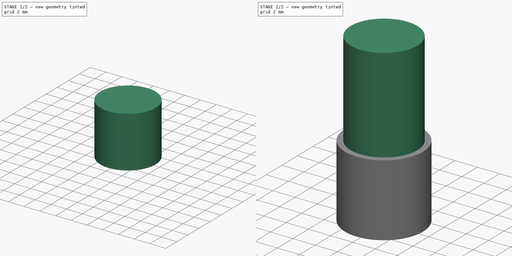
[diagram: build sequence overview — one tinted view per stage of 2, left to right]
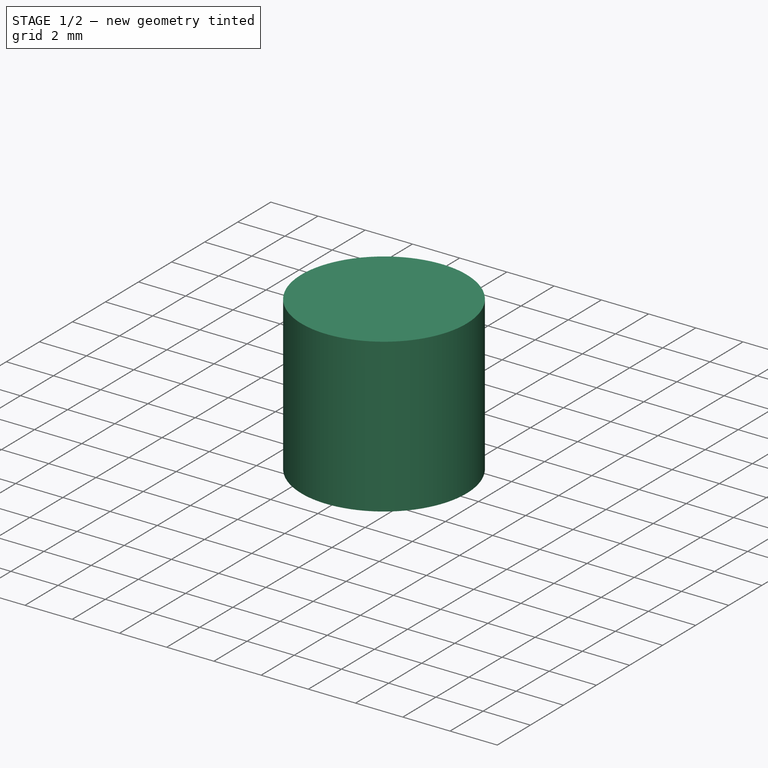
[diagram: stage 1 of 2 — iso view after this stage's code; geometry added in this stage tinted green]
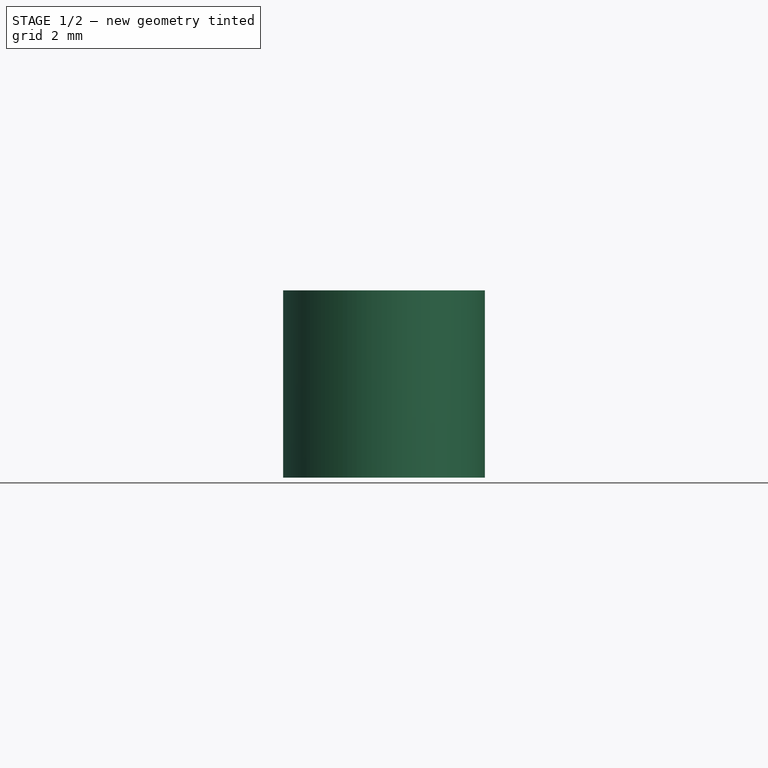
[diagram: stage 1 of 2 — front view after this stage's code; geometry added in this stage tinted green]
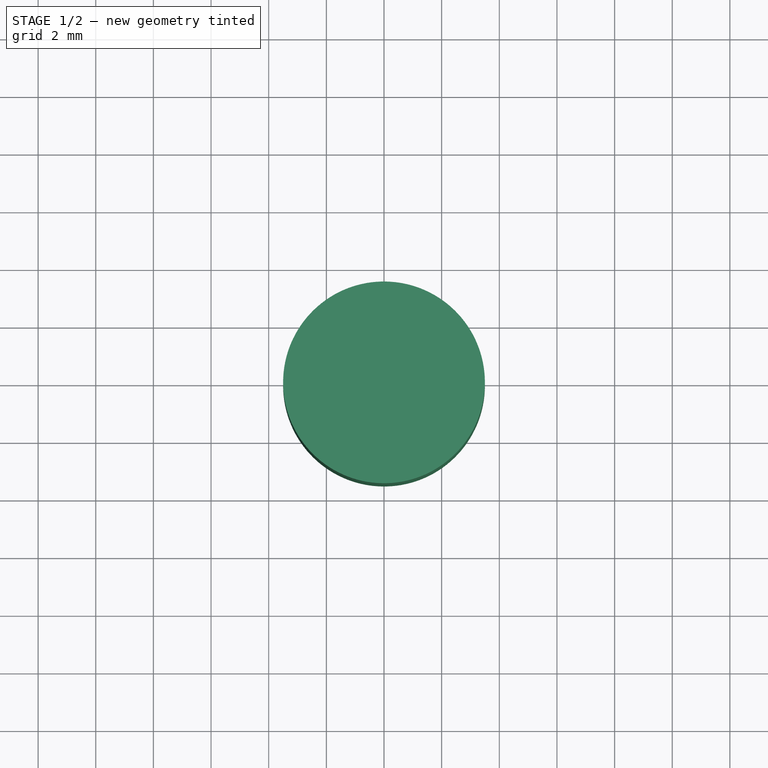
[diagram: stage 1 of 2 — top view after this stage's code; geometry added in this stage tinted green]
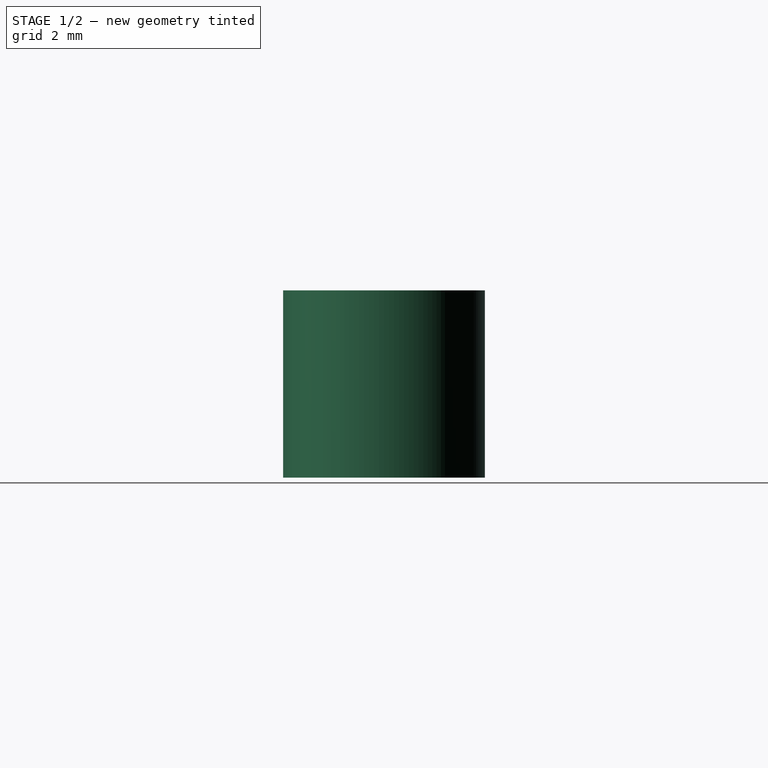
[diagram: stage 1 of 2 — right view after this stage's code; geometry added in this stage tinted green]
FCSTD DOCUMENT  (FreeCAD 0.19R16699 (Git))
Label: RV16AF Series Shafts Spreadsheet
License: All rights reserved
LicenseURL: http://en.wikipedia.org/wiki/All_rights_reserved
objects: Sketcher::SketchObject×2, PartDesign::Pad×2, Spreadsheet::Sheet×1, PartDesign::Body×1, App::Part×1
note: 7 computed .brp shape members not serialized (recipe doc carries the construction recipe); baked Part::Feature solids carry a one-line shape summary decoded from their .brp

FEATURE [Spreadsheet::Sheet] Spreadsheet  label="Data"
  cells = F1=Alpha Taiwan 16mm Series Bushing Code; A2=thread_diameter; B2(thread_diameter)==7mm; F2=Order Code Part 1; G2=Thread ; I2=Order Code Part 2; J2=Length; A3=thread_pitch; B3(thread_pitch)==0.75mm; F3=A; G3=M6 x 0.75; I3=1; J3==5mm; A4=thread_length; B4(thread_length)==6.5mm; D4=Datasheet: A; F4=B; G4=M7 x 0.75; I4=2; J4==6.5mm; A5=shaft_diameter; B5(shaft_diameter)==6mm; F5=C; G5=M8 x 0.75; I5=3; J5==7mm; A6=shaft_length; B6(shaft_length)==15mm; D6=Datasheet: L; F6=D; G6=M3/8 x 0.75; I6=4; J6==8mm; F7=Blank; G7=M7 x 0.75; I7=Blank; J7==6.5mm; F8=M3/8 equals 9.525 mm; F10=Alpha Taiwan 16mm Series Shaft Code; F11=Order Code; G11=Length; F12=10R; G12==10mm; I12=Bushing Length = 5, 6.5 or 8.0; F13=15R; G13==15mm; F14=20R; G14==20mm; I14=Addition of (1) after R appears; F15=25R; G15==25mm; I15=to indicate 6.35 mm shaft
FEATURE [Sketcher::SketchObject] Sketch  label="BushingSketch"
  MapMode = 5
  Support = -> [XY_Plane001]
  expr: Constraints[1] = Data.thread_diameter
  sketch-geometry (1):
    g0: Circle CenterX=0 CenterY=0 CenterZ=0 NormalX=0 NormalY=0 NormalZ=1 AngleXU=0 Radius=3.5
  constraints (2):
    c: Coincident(g0,g-1)
    c: Diameter(g0) = 7
FEATURE [PartDesign::Pad] Pad  label="BushingPad"
  Length = 6.5
  Length2 = 100
  Profile = -> Sketch
  Type = 0
  expr: Length = Data.thread_length
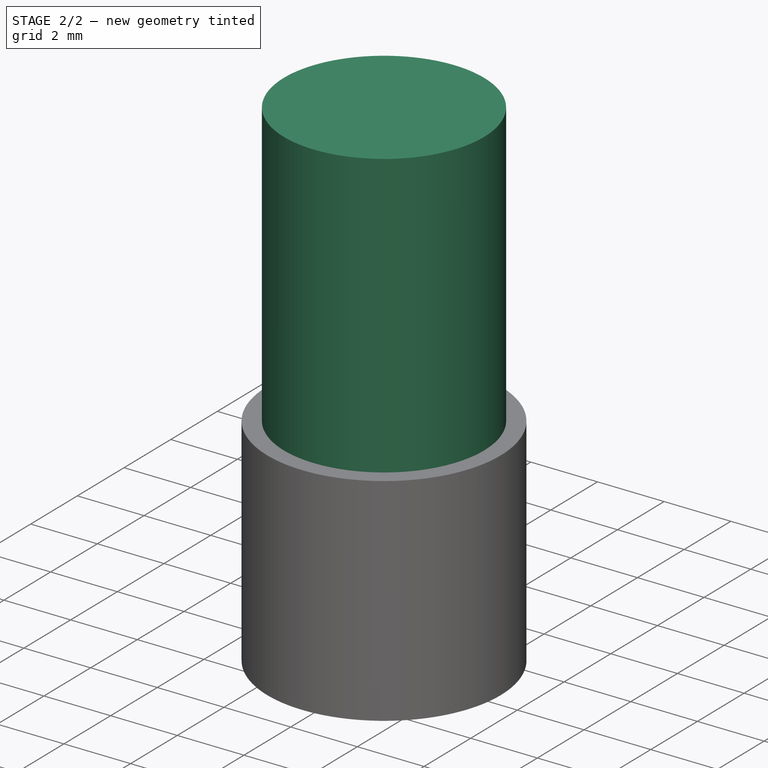
[diagram: stage 2 of 2 — iso view after this stage's code; geometry added in this stage tinted green]
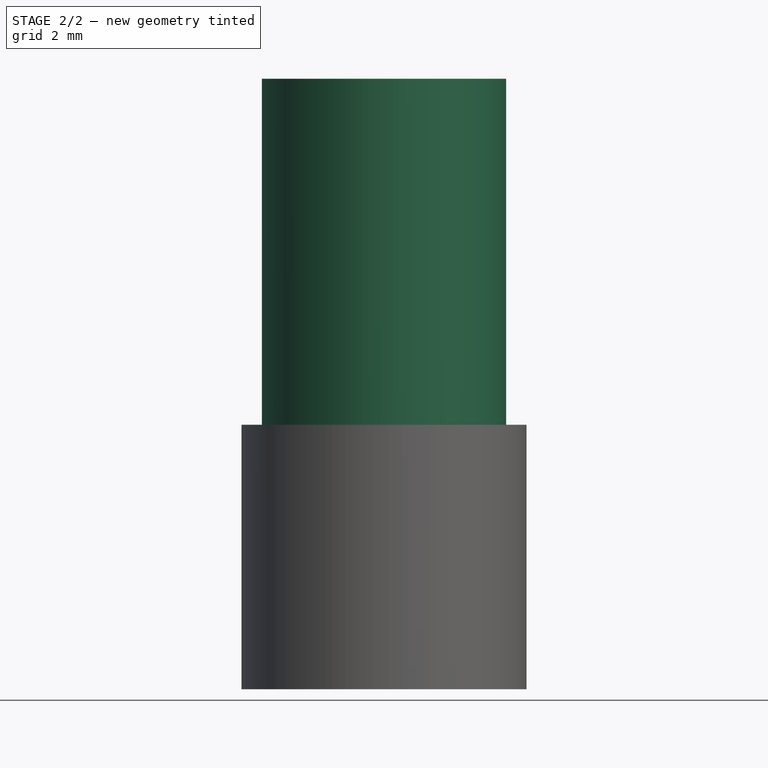
[diagram: stage 2 of 2 — front view after this stage's code; geometry added in this stage tinted green]
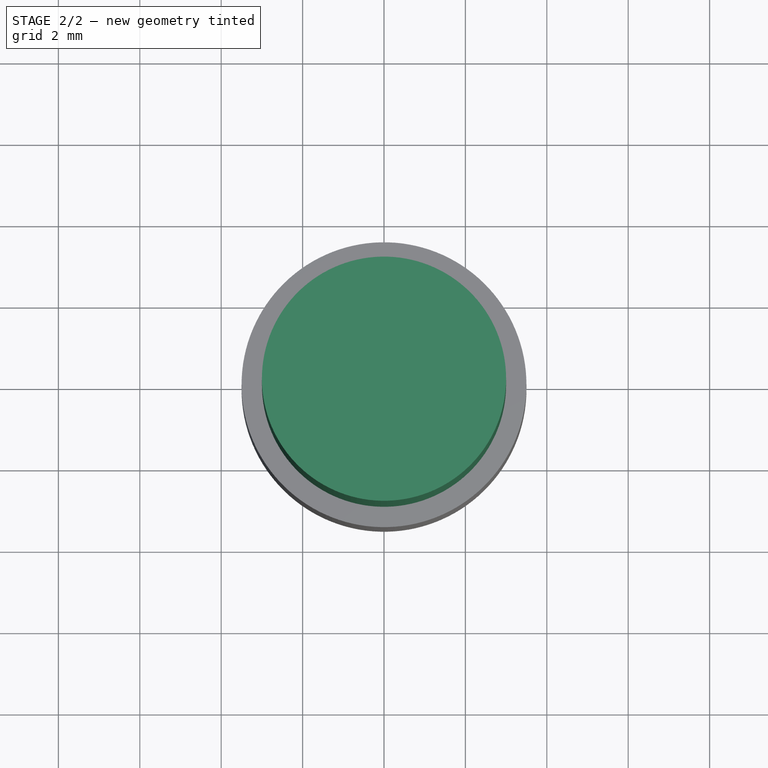
[diagram: stage 2 of 2 — top view after this stage's code; geometry added in this stage tinted green]
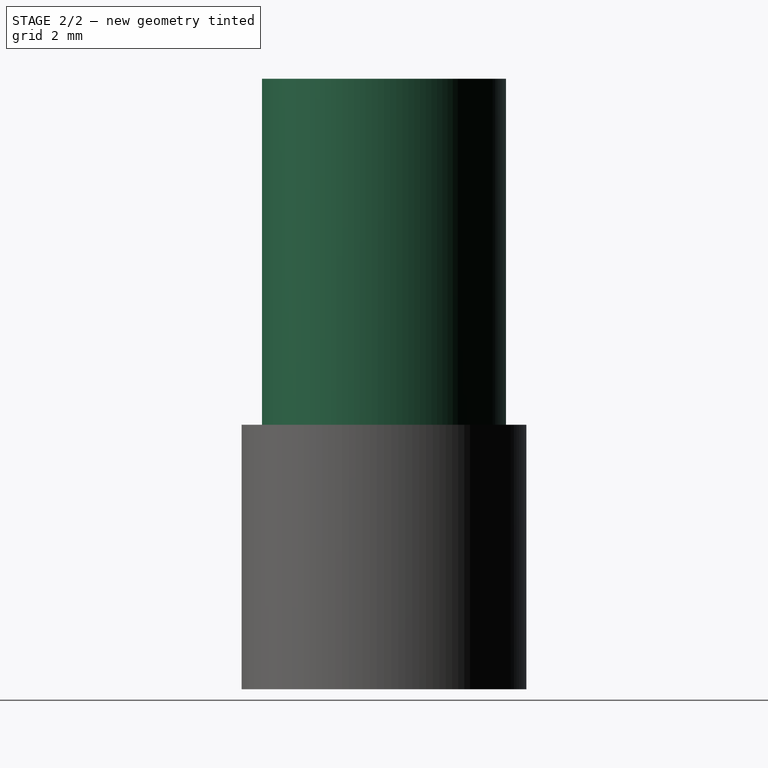
[diagram: stage 2 of 2 — right view after this stage's code; geometry added in this stage tinted green]
FEATURE [Sketcher::SketchObject] Sketch001  label="ShaftSketch"
  MapMode = 5
  Support = -> [XY_Plane001]
  expr: Constraints[1] = Data.shaft_diameter
  sketch-geometry (1):
    g0: Circle CenterX=0 CenterY=0 CenterZ=0 NormalX=0 NormalY=0 NormalZ=1 AngleXU=0 Radius=3
  constraints (2):
    c: Coincident(g0,g-1)
    c: Diameter(g0) = 6
FEATURE [PartDesign::Pad] Pad001  label="ShaftPad"
  BaseFeature = -> Pad
  Length = 15
  Length2 = 100
  Profile = -> Sketch001
  Type = 0
  expr: Length = Data.shaft_length
FEATURE [PartDesign::Body] Body  label="Shaft_Type_15R"
  Group = -> [Sketch,Pad,Sketch001,Pad001]
  Origin = -> Origin001
  Tip = -> Pad001
FEATURE [App::Part] Part  label="Shaft_Type_R"
  Group = -> [Body]
  Origin = -> Origin
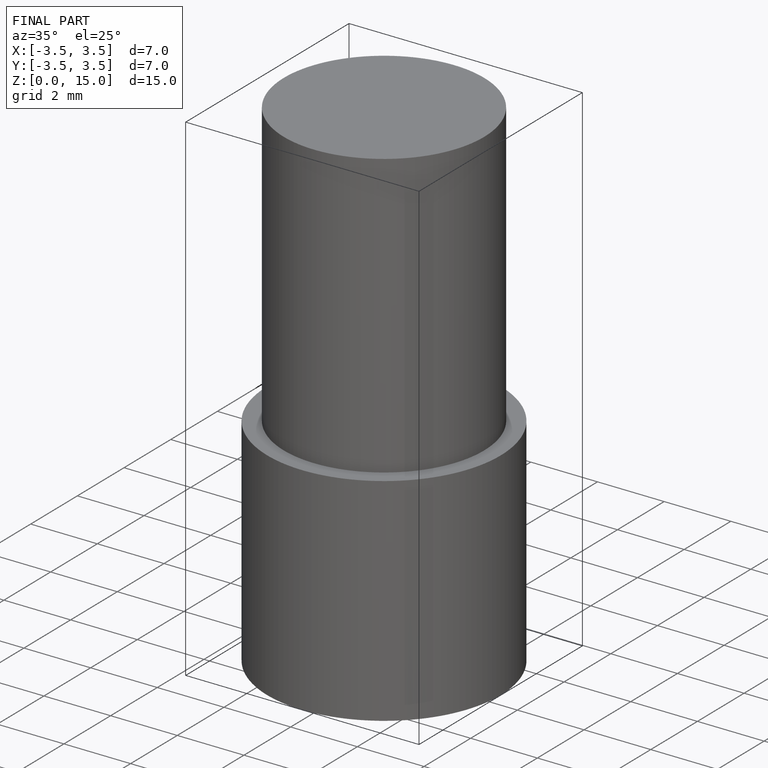
[diagram: finished part — iso view with bounding-box wireframe]
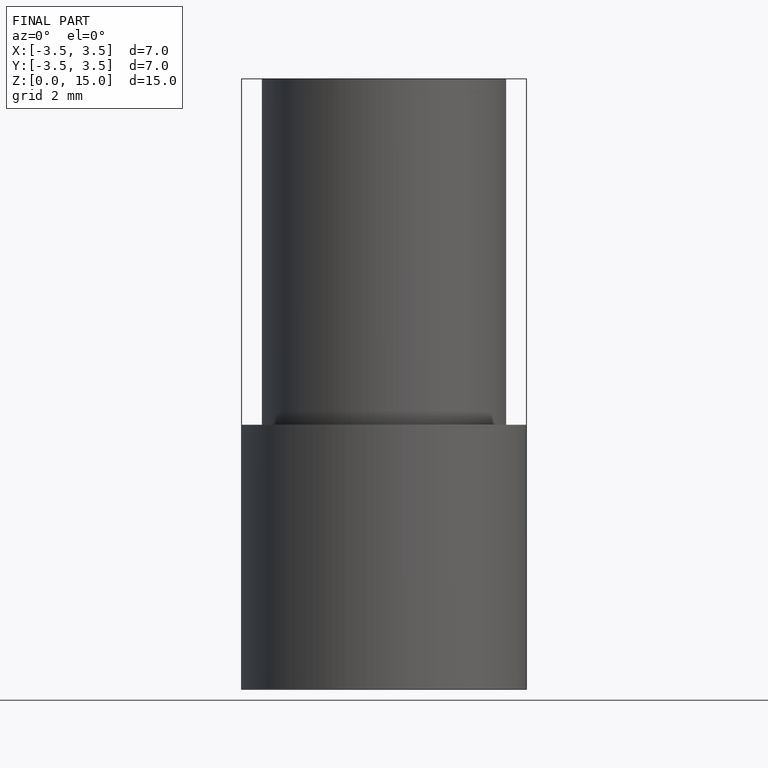
[diagram: finished part — front view with bounding-box wireframe]
